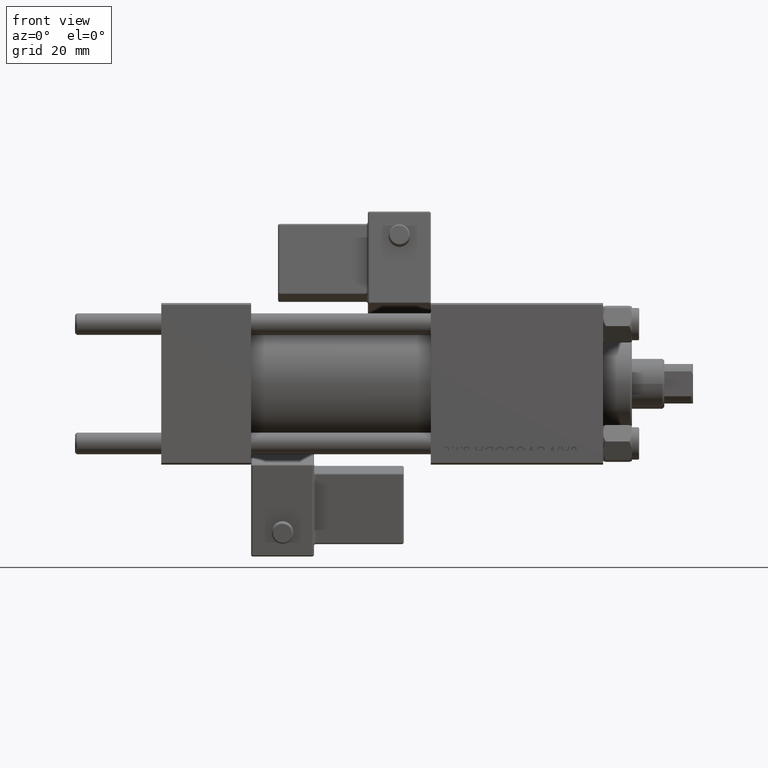
[diagram: clean part render]
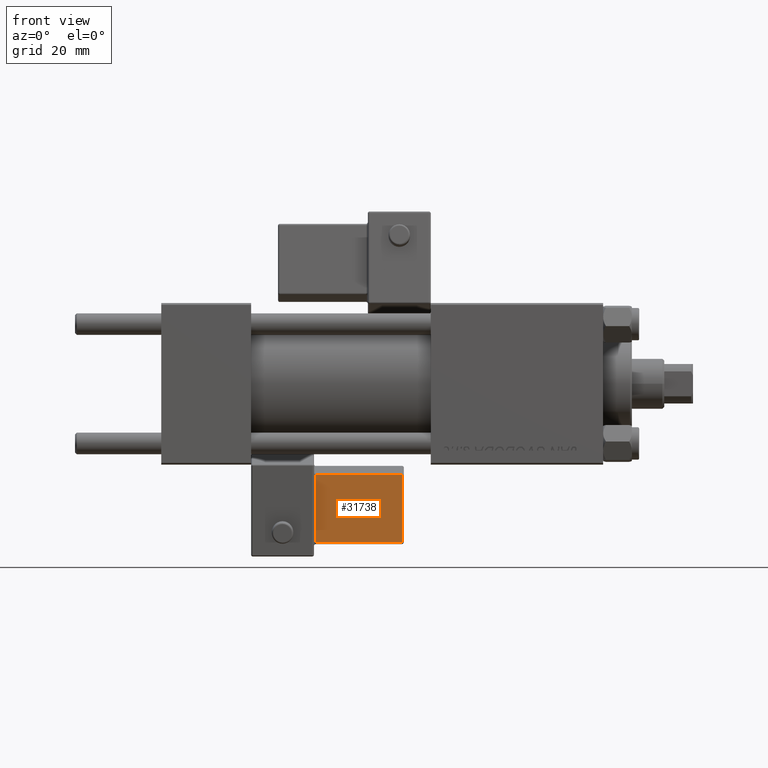
[diagram: same view with one face highlighted and labeled with its STEP entity id]
A machine part, front view. The second image highlights one B-rep face of the part: STEP entity #31738.
In plain terms, the highlighted planar face has unit normal (0, 0.9902, 0.1399).
Its self-contained STEP definition (entity closure, byte-faithful):
#576 = PLANE ( 'NONE',  #40343 ) ;
#3086 = ORIENTED_EDGE ( 'NONE', *, *, #8999, .T. ) ;
#5805 = VECTOR ( 'NONE', #38325, 1000.000000000000000 ) ;
#5832 = LINE ( 'NONE', #45244, #5805 ) ;
#7392 = VECTOR ( 'NONE', #12334, 1000.000000000000000 ) ;
#8999 = EDGE_CURVE ( 'NONE', #44059, #35554, #41505, .T. ) ;
#9479 = EDGE_CURVE ( 'NONE', #35554, #10045, #24760, .T. ) ;
#10045 = VERTEX_POINT ( 'NONE', #32225 ) ;
#12334 = DIRECTION ( 'NONE',  ( 1.334402673828313339E-16, 0.000000000000000000, -1.000000000000000000 ) ) ;
#15957 = DIRECTION ( 'NONE',  ( -0.000000000000000000, 1.000000000000000000, 0.000000000000000000 ) ) ;
#16113 = ORIENTED_EDGE ( 'NONE', *, *, #36514, .T. ) ;
#16266 = EDGE_CURVE ( 'NONE', #10045, #25819, #48546, .T. ) ;
#23725 = CARTESIAN_POINT ( 'NONE',  ( 33.75000000000000000, -30.25000000000000000, 2.500000000000005773 ) ) ;
#24634 = DIRECTION ( 'NONE',  ( -1.000000000000000000, 0.000000000000000000, -1.334402673828313339E-16 ) ) ;
#24760 = LINE ( 'NONE', #52262, #7392 ) ;
#25819 = VERTEX_POINT ( 'NONE', #38082 ) ;
#28448 = DIRECTION ( 'NONE',  ( 1.000000000000000000, -0.000000000000000000, 1.334402673828313339E-16 ) ) ;
#28516 = ORIENTED_EDGE ( 'NONE', *, *, #16266, .T. ) ;
#28623 = CARTESIAN_POINT ( 'NONE',  ( 33.75000000000000000, -30.25000000000000000, 22.00000000000000355 ) ) ;
#29753 = EDGE_LOOP ( 'NONE', ( #50973, #28516, #16113, #3086 ) ) ;
#30646 = CARTESIAN_POINT ( 'NONE',  ( 9.250000000000001776, -30.25000000000000000, 21.50000000000000000 ) ) ;
#31738 = ADVANCED_FACE ( 'NONE', ( #36009 ), #576, .F. ) ;
#32050 = DIRECTION ( 'NONE',  ( 0.000000000000000000, -0.000000000000000000, 1.000000000000000000 ) ) ;
#32225 = CARTESIAN_POINT ( 'NONE',  ( 9.250000000000005329, -30.25000000000000000, 2.500000000000003109 ) ) ;
#33571 = VECTOR ( 'NONE', #24634, 1000.000000000000000 ) ;
#34870 = VECTOR ( 'NONE', #28448, 1000.000000000000000 ) ;
#35554 = VERTEX_POINT ( 'NONE', #30646 ) ;
#36009 = FACE_OUTER_BOUND ( 'NONE', #29753, .T. ) ;
#36514 = EDGE_CURVE ( 'NONE', #25819, #44059, #5832, .T. ) ;
#38082 = CARTESIAN_POINT ( 'NONE',  ( 33.24999999999999289, -30.25000000000000000, 2.500000000000006661 ) ) ;
#38325 = DIRECTION ( 'NONE',  ( -1.734723475976807341E-16, -0.000000000000000000, 1.000000000000000000 ) ) ;
#40343 = AXIS2_PLACEMENT_3D ( 'NONE', #28623, #15957, #32050 ) ;
#41505 = LINE ( 'NONE', #44704, #33571 ) ;
#44059 = VERTEX_POINT ( 'NONE', #47894 ) ;
#44704 = CARTESIAN_POINT ( 'NONE',  ( 33.75000000000000000, -30.25000000000000000, 21.50000000000000000 ) ) ;
#45244 = CARTESIAN_POINT ( 'NONE',  ( 33.24999999999999289, -30.25000000000000000, 22.00000000000000355 ) ) ;
#47894 = CARTESIAN_POINT ( 'NONE',  ( 33.24999999999999289, -30.25000000000000000, 21.50000000000000000 ) ) ;
#48546 = LINE ( 'NONE', #23725, #34870 ) ;
#50973 = ORIENTED_EDGE ( 'NONE', *, *, #9479, .T. ) ;
#52262 = CARTESIAN_POINT ( 'NONE',  ( 9.250000000000005329, -30.25000000000000000, 2.000000000000001776 ) ) ;